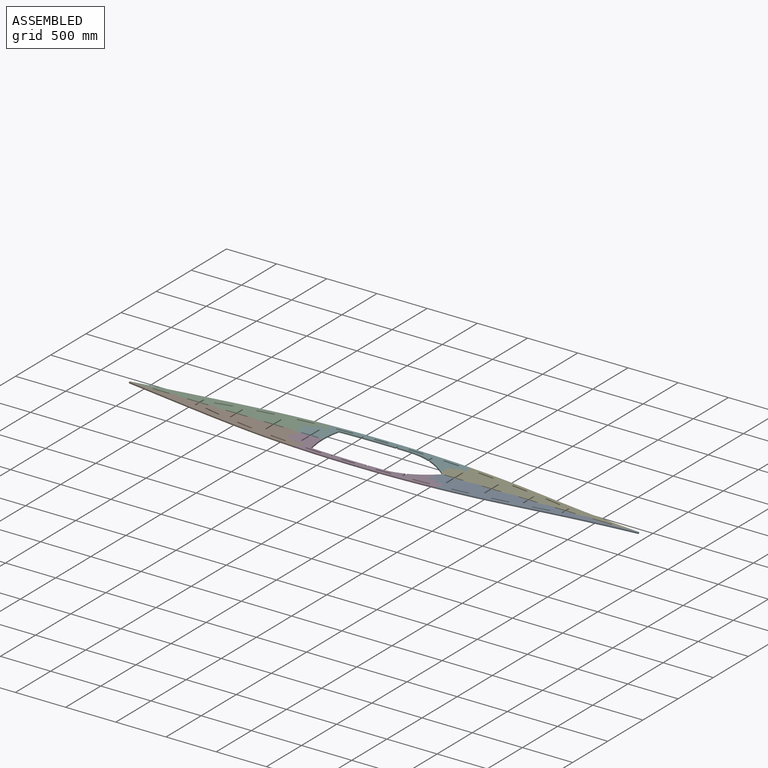
[diagram: assembled view]
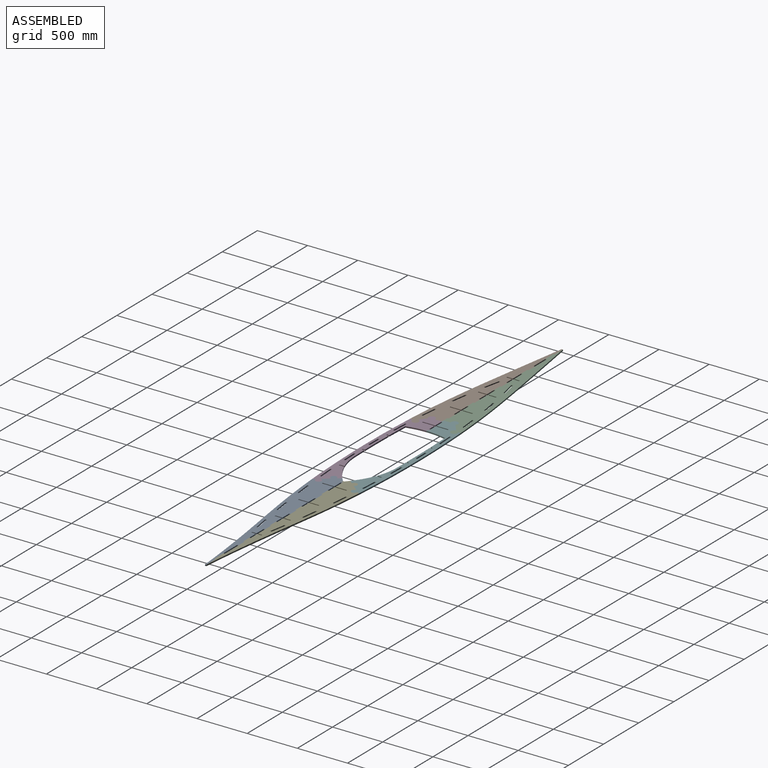
[diagram: assembled view, second angle]
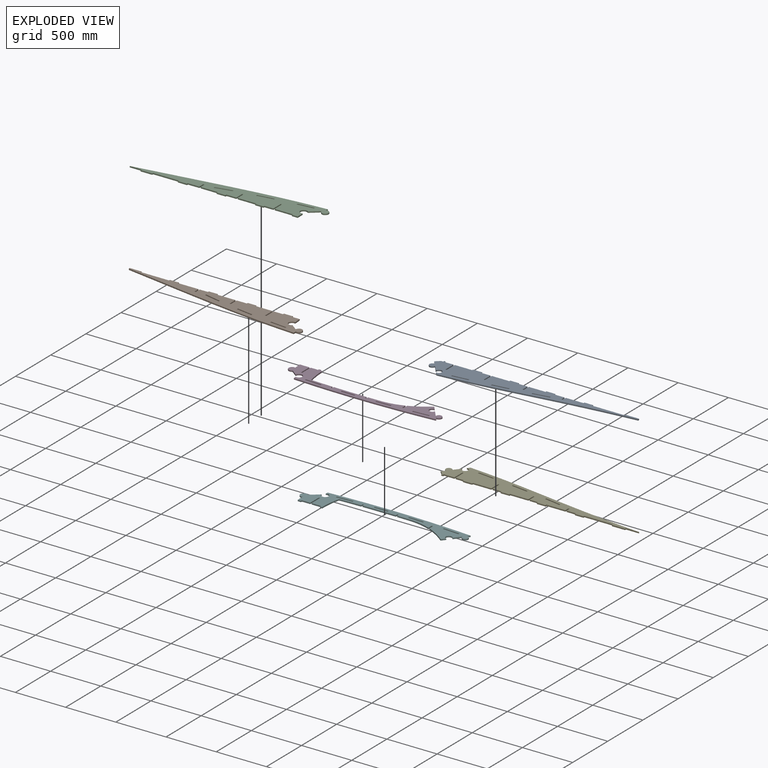
[diagram: exploded view]
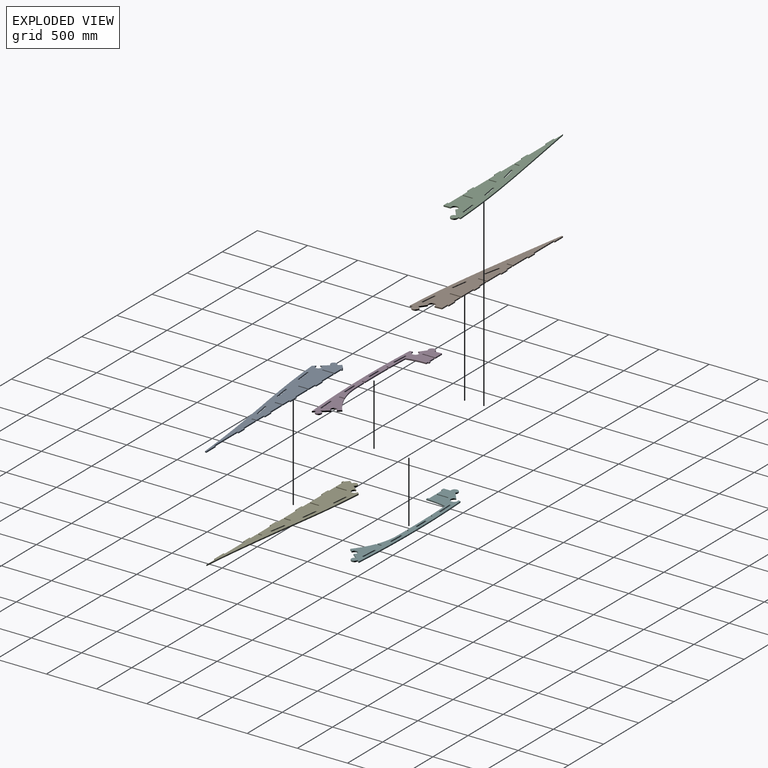
[diagram: exploded view, second angle]
ASSEMBLY  parts=6 mates=5
PART A: 67 faces, bbox 2007.6x243.5x12.7 mm
  f0: plane 27.32x21.97mm, normal (0.78,0.63,0), area 445.2mm2, adj f1,f64,f65,f66
  f1: extruded ~1849.71x230.82mm, area 23679.2mm2, adj f0,f2,f65,f66
  f2: plane 12.7x12.7mm, normal (-1,0,0), area 161.3mm2, adj f1,f3,f65,f66
  f3: plane 132.31x12.7mm, normal (0,-1,0), area 1680.4mm2, adj f2,f4,f65,f66
  f4: plane 12.7x12.7mm, normal (0.98,0.17,0), area 163.8mm2, adj f3,f5,f65,f66
  f5: extruded ~132.31x12.7mm, area 1680.4mm2, adj f4,f6,f65,f66
  f6: plane 195.46x12.7mm, normal (0,-1,0), area 2482.4mm2, adj f5,f7,f65,f66
  f7: plane 12.7x12.7mm, normal (-1,0,0), area 161.3mm2, adj f6,f8,f65,f66
  f8: plane 87.66x12.7mm, normal (0,-1,0), area 1113.3mm2, adj f7,f9,f65,f66
  f9: plane 12.7x12.7mm, normal (0.98,0.17,0), area 163.8mm2, adj f8,f10,f65,f66
  f10: plane 87.66x12.7mm, normal (0,-1,0), area 1113.3mm2, adj f9,f11,f65,f66
  f11: extruded ~90.73x12.7mm, area 1152.2mm2, adj f10,f12,f65,f66
  f12: plane 42.27x12.7mm, normal (1,0,0), area 536.8mm2, adj f11,f13,f65,f66
  f13: plane 12.71x12.7mm, normal (0,-1,0), area 161.4mm2, adj f12,f14,f65,f66
  f14: plane 42.27x12.7mm, normal (-1,0,0), area 536.8mm2, adj f13,f15,f65,f66
  f15: extruded ~100.24x12.7mm, area 1273.1mm2, adj f14,f16,f65,f66
  f16: plane 12.7x12.7mm, normal (-1,0,0), area 161.3mm2, adj f15,f17,f65,f66
  f17: plane 88.39x12.7mm, normal (0,-1,0), area 1122.5mm2, adj f16,f18,f65,f66
  f18: plane 12.7x12.7mm, normal (0.98,0.17,0), area 163.8mm2, adj f17,f19,f65,f66
  f19: plane 88.39x12.7mm, normal (0,-1,0), area 1122.5mm2, adj f18,f20,f65,f66
  f20: plane 81.07x12.7mm, normal (0,-1,0), area 1029.6mm2, adj f19,f21,f65,f66
  f21: plane 70.14x12.7mm, normal (1,0,0), area 890.8mm2, adj f20,f22,f65,f66
  f22: plane 12.71x12.7mm, normal (0,-1,0), area 161.4mm2, adj f21,f23,f65,f66
  f23: plane 70.14x12.7mm, normal (-1,0,0), area 890.8mm2, adj f22,f24,f65,f66
  f24: extruded ~93.08x12.7mm, area 1182.1mm2, adj f23,f25,f65,f66
  f25: plane 12.7x12.7mm, normal (-1,0,0), area 161.3mm2, adj f24,f26,f65,f66
  f26: plane 88.51x12.7mm, normal (0,-1,0), area 1124mm2, adj f25,f27,f65,f66
  f27: plane 12.7x12.7mm, normal (0.98,0.17,0), area 163.8mm2, adj f26,f28,f65,f66
  f28: plane 88.51x12.7mm, normal (0,-1,0), area 1124mm2, adj f27,f29,f65,f66
  f29: extruded ~87.9x12.7mm, area 1116.3mm2, adj f28,f30,f65,f66
  f30: plane 96.01x12.7mm, normal (1,0,0), area 1219.3mm2, adj f29,f31,f65,f66
  f31: plane 12.7x12.7mm, normal (0,-1,0), area 161.3mm2, adj f30,f32,f65,f66
  f32: plane 96.01x12.7mm, normal (-1,0,0), area 1219.3mm2, adj f31,f33,f65,f66
  f33: plane 90.33x12.7mm, normal (0,-1,0), area 1147.1mm2, adj f32,f34,f65,f66
  f34: plane 12.7x12.7mm, normal (-1,0,0), area 161.3mm2, adj f33,f35,f65,f66
  f35: plane 93.2x12.7mm, normal (0,-1,0), area 1183.6mm2, adj f34,f36,f65,f66
  f36: plane 12.7x12.7mm, normal (0.98,0.17,0), area 163.8mm2, adj f35,f37,f65,f66
  f37: plane 93.2x12.7mm, normal (0,-1,0), area 1183.6mm2, adj f36,f38,f65,f66
  f38: extruded ~81.21x12.7mm, area 1031.4mm2, adj f37,f39,f65,f66
  f39: plane 114.51x12.7mm, normal (1,0,0), area 1454.3mm2, adj f38,f40,f65,f66
  f40: plane 12.7x12.7mm, normal (0,-1,0), area 161.3mm2, adj f39,f41,f65,f66
  f41: plane 114.51x12.7mm, normal (-1,0,0), area 1454.3mm2, adj f40,f42,f65,f66
  f42: plane 90.23x12.7mm, normal (0,-1,0), area 1145.9mm2, adj f41,f43,f65,f66
  f43: plane 12.7x12.7mm, normal (-1,0,0), area 161.3mm2, adj f42,f44,f65,f66
  f44: plane 13.83x12.7mm, normal (0,-1,0), area 175.7mm2, adj f43,f45,f65,f66
  f45: plane 12.7x12.7mm, normal (0.98,0.17,0), area 163.8mm2, adj f44,f46,f65,f66
  f46: plane 20.79x12.7mm, normal (0,-1,0), area 264mm2, adj f45,f47,f65,f66
  f47: extruded ~43.25x36.96mm, area 722.7mm2, adj f46,f48,f65,f66
  f48: plane 35.93x28.9mm, normal (0.78,0.63,0), area 585.6mm2, adj f47,f49,f65,f66
  f49: cylinder r=29.82mm len=59.64mm, axis (0,0,-1), area 1730.3mm2, adj f48,f50,f65,f66
  f50: plane 69.27x55.72mm, normal (0.78,0.63,0), area 1129mm2, adj f49,f64,f65,f66
  f51: plane 14.67x12.7mm, normal (-1,0,0), area 186.3mm2, adj f52,f61,f65,f66
  f52: extruded ~80.56x12.7mm, area 1032mm2, adj f51,f53,f65,f66
  f53: extruded ~80.5x12.7mm, area 1032mm2, adj f52,f54,f65,f66
  f54: plane 14.62x12.7mm, normal (1,0,0), area 185.7mm2, adj f53,f61,f65,f66
  f55: extruded ~161.03x16.97mm, area 2056.4mm2, adj f56,f62,f65,f66
  f56: plane 14.72x12.7mm, normal (1,0,0), area 187mm2, adj f55,f57,f65,f66
  f57: extruded ~161.03x17mm, area 2056.5mm2, adj f56,f62,f65,f66
  f58: plane 14.67x12.7mm, normal (-1,0,0), area 186.3mm2, adj f59,f63,f65,f66
  f59: extruded ~161.1x27.82mm, area 2076.3mm2, adj f58,f60,f65,f66
  f60: plane 14.73x12.7mm, normal (1,0,0), area 187mm2, adj f59,f63,f65,f66
  f61: extruded ~161.06x21.77mm, area 2064.1mm2, adj f51,f54,f65,f66
  f62: plane 14.75x12.7mm, normal (-1,0,0), area 187.3mm2, adj f55,f57,f65,f66
  f63: extruded ~161.1x27.77mm, area 2076.2mm2, adj f58,f60,f65,f66
  f64: cylinder r=29.82mm len=59.64mm, axis (0,0,-1), area 1925.7mm2, adj f0,f50,f65,f66
  f65: plane 2007.64x243.52mm, normal (0,0,1), area 229362.9mm2, adj f0,f1,f2,f3,f4,f5,f6,f7
  f66: plane 2007.64x243.52mm, normal (0,0,-1), area 229362.9mm2, adj f0,f1,f2,f3,f4,f5,f6,f7
PART B: 56 faces, bbox 1854.6x255.7x12.7 mm
  f0: plane 70.97x12.7mm, normal (1,0.08,0), area 903.9mm2, adj f1,f53,f54,f55
  f1: plane 78.66x12.7mm, normal (0,1,0), area 999mm2, adj f0,f2,f54,f55
  f2: plane 12.7x12.7mm, normal (0.98,-0.17,0), area 163.8mm2, adj f1,f3,f54,f55
  f3: plane 90.76x12.7mm, normal (0,1,0), area 1152.6mm2, adj f2,f4,f54,f55
  f4: plane 12.7x12.7mm, normal (-1,0,0), area 161.3mm2, adj f3,f5,f54,f55
  f5: plane 91.99x12.7mm, normal (0,1,0), area 1168.3mm2, adj f4,f6,f54,f55
  f6: plane 105.84x12.7mm, normal (-1,0,0), area 1344.1mm2, adj f5,f7,f54,f55
  f7: extruded ~12.7x12.7mm, area 161.3mm2, adj f6,f8,f54,f55
  f8: plane 105.84x12.7mm, normal (1,0,0), area 1344.1mm2, adj f7,f9,f54,f55
  f9: extruded ~89.13x12.7mm, area 1131.9mm2, adj f8,f10,f54,f55
  f10: plane 83.5x12.7mm, normal (0,1,0), area 1060.4mm2, adj f9,f11,f54,f55
  f11: plane 12.7x12.7mm, normal (0.98,-0.17,0), area 163.8mm2, adj f10,f12,f54,f55
  f12: plane 83.5x12.7mm, normal (0,1,0), area 1060.4mm2, adj f11,f13,f54,f55
  f13: plane 12.7x12.7mm, normal (-1,0,0), area 161.3mm2, adj f12,f14,f54,f55
  f14: plane 101.78x12.7mm, normal (0,1,0), area 1292.7mm2, adj f13,f15,f54,f55
  f15: plane 83.13x12.7mm, normal (-1,0,0), area 1055.7mm2, adj f14,f16,f54,f55
  f16: plane 12.7x12.7mm, normal (0,1,0), area 161.3mm2, adj f15,f17,f54,f55
  f17: plane 83.13x12.7mm, normal (1,0,0), area 1055.7mm2, adj f16,f18,f54,f55
  f18: extruded ~98.75x12.7mm, area 1254.1mm2, adj f17,f19,f54,f55
  f19: plane 88.37x12.7mm, normal (0,1,0), area 1122.3mm2, adj f18,f20,f54,f55
  f20: plane 12.7x12.7mm, normal (0.98,-0.17,0), area 163.8mm2, adj f19,f21,f54,f55
  f21: plane 88.37x12.7mm, normal (0,1,0), area 1122.3mm2, adj f20,f22,f54,f55
  f22: plane 12.7x12.7mm, normal (-1,0,0), area 161.3mm2, adj f21,f23,f54,f55
  f23: plane 82.54x12.7mm, normal (0,1,0), area 1048.3mm2, adj f22,f24,f54,f55
  f24: plane 55.46x12.7mm, normal (-1,0,0), area 704.3mm2, adj f23,f25,f54,f55
  f25: plane 12.71x12.7mm, normal (0,1,0), area 161.4mm2, adj f24,f26,f54,f55
  f26: plane 55.46x12.7mm, normal (1,0,0), area 704.3mm2, adj f25,f27,f54,f55
  f27: extruded ~114.85x12.7mm, area 1458.6mm2, adj f26,f28,f54,f55
  f28: plane 90.33x12.7mm, normal (0,1,0), area 1147.1mm2, adj f27,f29,f54,f55
  f29: plane 12.7x12.7mm, normal (0.98,-0.17,0), area 163.8mm2, adj f28,f30,f54,f55
  f30: plane 90.33x12.7mm, normal (0,1,0), area 1147.1mm2, adj f29,f31,f54,f55
  f31: plane 12.7x12.7mm, normal (-1,0,0), area 161.3mm2, adj f30,f32,f54,f55
  f32: extruded ~167.52x12.7mm, area 2127.6mm2, adj f31,f33,f54,f55
  f33: plane 117.19x12.7mm, normal (0,1,0), area 1488.3mm2, adj f32,f34,f54,f55
  f34: plane 12.7x12.7mm, normal (0.98,-0.17,0), area 163.8mm2, adj f33,f35,f54,f55
  f35: plane 117.19x12.7mm, normal (0,1,0), area 1488.3mm2, adj f34,f36,f54,f55
  f36: plane 12.7x12.7mm, normal (-1,0,0), area 161.3mm2, adj f35,f37,f54,f55
  f37: extruded ~1813.71x243.04mm, area 23251mm2, adj f36,f38,f54,f55
  f38: plane 28.57x12.7mm, normal (0.99,0.13,0), area 365.9mm2, adj f37,f39,f54,f55
  f39: cylinder r=34.05mm len=68.1mm, axis (0,0,-1), area 2139.2mm2, adj f38,f40,f54,f55
  f40: plane 66.22x50.11mm, normal (0.6,0.8,0), area 1054.6mm2, adj f39,f53,f54,f55
  f41: extruded ~161.09x35.29mm, area 2094.4mm2, adj f42,f50,f54,f55
  f42: plane 15.13x12.7mm, normal (-1,0,0), area 192.2mm2, adj f41,f43,f54,f55
  f43: extruded ~161.09x35.19mm, area 2094.1mm2, adj f42,f50,f54,f55
  f44: plane 15.03x12.7mm, normal (1,0,0), area 190.9mm2, adj f45,f51,f54,f55
  f45: extruded ~161.02x25.16mm, area 2069.8mm2, adj f44,f46,f54,f55
  f46: plane 14.97x12.7mm, normal (-1,0,0), area 190.1mm2, adj f45,f51,f54,f55
  f47: extruded ~160.98x16.37mm, area 2055mm2, adj f48,f52,f54,f55
  f48: plane 14.87x12.7mm, normal (-1,0,0), area 188.9mm2, adj f47,f49,f54,f55
  f49: extruded ~160.98x16.34mm, area 2055mm2, adj f48,f52,f54,f55
  f50: plane 15.23x12.7mm, normal (1,0,0), area 193.4mm2, adj f41,f43,f54,f55
  f51: extruded ~161.02x25.1mm, area 2069.7mm2, adj f44,f46,f54,f55
  f52: plane 14.91x12.7mm, normal (1,0,0), area 189.3mm2, adj f47,f49,f54,f55
  f53: cylinder r=34.05mm len=68.1mm, axis (0,0,-1), area 1790.1mm2, adj f0,f40,f54,f55
  f54: plane 1854.63x255.74mm, normal (0,0,1), area 226402.7mm2, adj f0,f1,f2,f3,f4,f5,f6,f7
  f55: plane 1854.63x255.74mm, normal (0,0,-1), area 226402.7mm2, adj f0,f1,f2,f3,f4,f5,f6,f7
PART C: 55 faces, bbox 1849.4x255.1x12.7 mm
  f0: extruded ~161.09x35.19mm, area 2094.1mm2, adj f1,f52,f53,f54
  f1: extruded ~15.13x12.7mm, area 192.2mm2, adj f0,f2,f53,f54
  f2: extruded ~161.09x35.29mm, area 2094.4mm2, adj f1,f52,f53,f54
  f3: plane 14.97x12.7mm, normal (1,0,0), area 190.1mm2, adj f4,f49,f53,f54
  f4: extruded ~161.02x25.16mm, area 2069.8mm2, adj f3,f5,f53,f54
  f5: plane 15.03x12.7mm, normal (-1,0,0), area 190.9mm2, adj f4,f49,f53,f54
  f6: extruded ~160.98x16.34mm, area 2055mm2, adj f7,f50,f53,f54
  f7: plane 14.87x12.7mm, normal (1,0,0), area 188.9mm2, adj f6,f8,f53,f54
  f8: extruded ~160.98x16.37mm, area 2055mm2, adj f7,f50,f53,f54
  f9: plane 58.57x12.7mm, normal (0,1,0), area 743.8mm2, adj f10,f51,f53,f54
  f10: plane 70.92x12.7mm, normal (-1,-0.02,0), area 900.9mm2, adj f9,f11,f53,f54
  f11: cylinder r=34.05mm len=68.1mm, axis (0,0,-1), area 1844.5mm2, adj f10,f12,f53,f54
  f12: plane 88.12x70.49mm, normal (-0.62,0.78,0), area 1433.1mm2, adj f11,f13,f53,f54
  f13: cylinder r=34.05mm len=68.1mm, axis (0,0,-1), area 2218.7mm2, adj f12,f14,f53,f54
  f14: plane 25.2x12.7mm, normal (-0.99,0.13,0), area 322.7mm2, adj f13,f15,f53,f54
  f15: extruded ~1802.85x242.38mm, area 23112.8mm2, adj f14,f16,f53,f54
  f16: plane 117.19x12.7mm, normal (0,1,0), area 1488.3mm2, adj f15,f17,f53,f54
  f17: plane 12.7x12.7mm, normal (0.98,-0.17,0), area 163.8mm2, adj f16,f18,f53,f54
  f18: plane 117.19x12.7mm, normal (0,1,0), area 1488.3mm2, adj f17,f19,f53,f54
  f19: plane 12.7x12.7mm, normal (-1,0,0), area 161.3mm2, adj f18,f20,f53,f54
  f20: extruded ~167.52x12.7mm, area 2127.6mm2, adj f19,f21,f53,f54
  f21: plane 90.33x12.7mm, normal (0,1,0), area 1147.1mm2, adj f20,f22,f53,f54
  f22: plane 12.7x12.7mm, normal (0.98,-0.17,0), area 163.8mm2, adj f21,f23,f53,f54
  f23: plane 90.33x12.7mm, normal (0,1,0), area 1147.1mm2, adj f22,f24,f53,f54
  f24: plane 12.7x12.7mm, normal (-1,0,0), area 161.3mm2, adj f23,f25,f53,f54
  f25: extruded ~114.85x12.7mm, area 1458.6mm2, adj f24,f26,f53,f54
  f26: extruded ~55.46x12.7mm, area 704.3mm2, adj f25,f27,f53,f54
  f27: plane 12.71x12.7mm, normal (0,1,0), area 161.4mm2, adj f26,f28,f53,f54
  f28: extruded ~55.46x12.7mm, area 704.3mm2, adj f27,f29,f53,f54
  f29: extruded ~82.54x12.7mm, area 1048.3mm2, adj f28,f30,f53,f54
  f30: plane 88.37x12.7mm, normal (0,1,0), area 1122.3mm2, adj f29,f31,f53,f54
  f31: plane 12.7x12.7mm, normal (0.98,-0.17,0), area 163.8mm2, adj f30,f32,f53,f54
  f32: plane 88.37x12.7mm, normal (0,1,0), area 1122.3mm2, adj f31,f33,f53,f54
  f33: plane 12.7x12.7mm, normal (-1,0,0), area 161.3mm2, adj f32,f34,f53,f54
  f34: plane 98.75x12.7mm, normal (0,1,0), area 1254.1mm2, adj f33,f35,f53,f54
  f35: plane 83.13x12.7mm, normal (-1,0,0), area 1055.7mm2, adj f34,f36,f53,f54
  f36: plane 12.7x12.7mm, normal (0,1,0), area 161.3mm2, adj f35,f37,f53,f54
  f37: extruded ~83.13x12.7mm, area 1055.7mm2, adj f36,f38,f53,f54
  f38: extruded ~101.78x12.7mm, area 1292.7mm2, adj f37,f39,f53,f54
  f39: plane 83.5x12.7mm, normal (0,1,0), area 1060.4mm2, adj f38,f40,f53,f54
  f40: plane 12.7x12.7mm, normal (0.98,-0.17,0), area 163.8mm2, adj f39,f41,f53,f54
  f41: plane 83.5x12.7mm, normal (0,1,0), area 1060.4mm2, adj f40,f42,f53,f54
  f42: plane 12.7x12.7mm, normal (-1,0,0), area 161.3mm2, adj f41,f43,f53,f54
  f43: plane 89.13x12.7mm, normal (0,1,0), area 1131.9mm2, adj f42,f44,f53,f54
  f44: plane 105.84x12.7mm, normal (-1,0,0), area 1344.1mm2, adj f43,f45,f53,f54
  f45: plane 12.7x12.7mm, normal (0,1,0), area 161.3mm2, adj f44,f46,f53,f54
  f46: plane 105.84x12.7mm, normal (1,0,0), area 1344.1mm2, adj f45,f47,f53,f54
  f47: extruded ~91.99x12.7mm, area 1168.3mm2, adj f46,f48,f53,f54
  f48: plane 90.76x12.7mm, normal (0,1,0), area 1152.6mm2, adj f47,f51,f53,f54
  f49: extruded ~161.02x25.1mm, area 2069.7mm2, adj f3,f5,f53,f54
  f50: plane 14.91x12.7mm, normal (-1,0,0), area 189.3mm2, adj f6,f8,f53,f54
  f51: plane 12.7x12.7mm, normal (0.98,-0.17,0), area 163.8mm2, adj f9,f48,f53,f54
  f52: plane 15.23x12.7mm, normal (-1,0,0), area 193.4mm2, adj f0,f2,f53,f54
  f53: plane 1849.41x255.08mm, normal (0,0,1), area 221836.7mm2, adj f0,f1,f2,f3,f4,f5,f6,f7
  f54: plane 1849.41x255.08mm, normal (0,0,-1), area 221836.7mm2, adj f0,f1,f2,f3,f4,f5,f6,f7
PART D: 53 faces, bbox 1576.1x273.9x12.7 mm
  f0: extruded ~160.99x12.7mm, area 2049.3mm2, adj f1,f50,f51,f52
  f1: plane 14.74x12.7mm, normal (-1,0,0), area 187.2mm2, adj f0,f2,f51,f52
  f2: extruded ~160.99x12.7mm, area 2049.2mm2, adj f1,f50,f51,f52
  f3: plane 14.84x12.7mm, normal (1,0,0), area 188.5mm2, adj f4,f46,f51,f52
  f4: extruded ~161.01x12.7mm, area 2047.8mm2, adj f3,f5,f51,f52
  f5: plane 14.83x12.7mm, normal (-1,0,0), area 188.3mm2, adj f4,f46,f51,f52
  f6: extruded ~148.3x12.7mm, area 1884.2mm2, adj f7,f47,f51,f52
  f7: plane 14.82x12.7mm, normal (1,0,0), area 188.1mm2, adj f6,f8,f51,f52
  f8: extruded ~148.3x12.7mm, area 1884.2mm2, adj f7,f47,f51,f52
  f9: extruded ~135.59x12.7mm, area 1722.1mm2, adj f10,f48,f51,f52
  f10: plane 14.81x12.7mm, normal (1,0,0), area 188.1mm2, adj f9,f11,f51,f52
  f11: extruded ~135.59x12.7mm, area 1722.1mm2, adj f10,f48,f51,f52
  f12: cylinder r=29.82mm len=59.64mm, axis (0,0,-1), area 1730.3mm2, adj f13,f49,f51,f52
  f13: plane 35.93x28.9mm, normal (0.78,0.63,0), area 585.6mm2, adj f12,f14,f51,f52
  f14: extruded ~189.79x114.19mm, area 2822.6mm2, adj f13,f15,f51,f52
  f15: plane 52.6x12.7mm, normal (-1,0,0), area 668.1mm2, adj f14,f16,f51,f52
  f16: extruded ~12.7x12.7mm, area 161.3mm2, adj f15,f17,f51,f52
  f17: plane 47.53x12.7mm, normal (1,0,0), area 603.6mm2, adj f16,f18,f51,f52
  f18: extruded ~342.92x45.02mm, area 4423.6mm2, adj f17,f19,f51,f52
  f19: plane 22.51x12.7mm, normal (-1,0,0), area 285.9mm2, adj f18,f20,f51,f52
  f20: extruded ~12.7x12.7mm, area 161.3mm2, adj f19,f21,f51,f52
  f21: plane 22.41x12.7mm, normal (1,0,0), area 284.6mm2, adj f20,f22,f51,f52
  f22: extruded ~330.2x12.7mm, area 4193.9mm2, adj f21,f23,f51,f52
  f23: plane 21.13x12.7mm, normal (-1,0,0), area 268.4mm2, adj f22,f24,f51,f52
  f24: extruded ~12.7x12.7mm, area 161.3mm2, adj f23,f25,f51,f52
  f25: plane 21.44x12.7mm, normal (1,0,0), area 272.2mm2, adj f24,f26,f51,f52
  f26: extruded ~216.28x12.7mm, area 2748.5mm2, adj f25,f27,f51,f52
  f27: extruded ~190.94x24.47mm, area 2450.6mm2, adj f26,f28,f51,f52
  f28: plane 22.3x12.7mm, normal (0,1,0), area 283.2mm2, adj f27,f29,f51,f52
  f29: plane 12.7x12.7mm, normal (0.98,-0.17,0), area 163.8mm2, adj f28,f30,f51,f52
  f30: plane 22.28x12.7mm, normal (0,1,0), area 282.9mm2, adj f29,f31,f51,f52
  f31: plane 12.7x12.7mm, normal (-1,0,0), area 161.3mm2, adj f30,f32,f51,f52
  f32: extruded ~72.54x12.7mm, area 921.2mm2, adj f31,f33,f51,f52
  f33: plane 121.04x12.7mm, normal (-1,0,0), area 1537.2mm2, adj f32,f34,f51,f52
  f34: extruded ~12.7x12.7mm, area 161.3mm2, adj f33,f35,f51,f52
  f35: plane 121.04x12.7mm, normal (1,0,0), area 1537.2mm2, adj f34,f36,f51,f52
  f36: extruded ~84.34x12.7mm, area 1071.1mm2, adj f35,f37,f51,f52
  f37: plane 12.7x12.1mm, normal (0,1,0), area 153.6mm2, adj f36,f38,f51,f52
  f38: plane 70.97x12.7mm, normal (-1,-0.08,0), area 903.9mm2, adj f37,f39,f51,f52
  f39: cylinder r=34.05mm len=68.1mm, axis (0,0,-1), area 1790.1mm2, adj f38,f40,f51,f52
  f40: plane 66.22x50.11mm, normal (-0.6,-0.8,0), area 1054.6mm2, adj f39,f41,f51,f52
  f41: cylinder r=34.05mm len=68.1mm, axis (0,0,-1), area 2139.2mm2, adj f40,f42,f51,f52
  f42: plane 28.57x12.7mm, normal (-0.99,-0.13,0), area 365.9mm2, adj f41,f43,f51,f52
  f43: extruded ~1409.66x30.18mm, area 17916.9mm2, adj f42,f44,f51,f52
  f44: plane 27.32x21.97mm, normal (0.78,0.63,0), area 445.2mm2, adj f43,f45,f51,f52
  f45: cylinder r=29.82mm len=59.64mm, axis (0,0,-1), area 1925.7mm2, adj f44,f49,f51,f52
  f46: extruded ~161.01x12.7mm, area 2047.8mm2, adj f3,f5,f51,f52
  f47: plane 14.79x12.7mm, normal (-1,0,0), area 187.8mm2, adj f6,f8,f51,f52
  f48: plane 14.81x12.7mm, normal (-1,0,0), area 188.1mm2, adj f9,f11,f51,f52
  f49: plane 69.27x55.72mm, normal (0.78,0.63,0), area 1129mm2, adj f12,f45,f51,f52
  f50: plane 14.73x12.7mm, normal (1,0,0), area 187.1mm2, adj f0,f2,f51,f52
  f51: plane 1576.06x273.9mm, normal (0,0,1), area 137871.3mm2, adj f0,f1,f2,f3,f4,f5,f6,f7
  f52: plane 1576.06x273.9mm, normal (0,0,-1), area 137871.3mm2, adj f0,f1,f2,f3,f4,f5,f6,f7
PART E: 67 faces, bbox 2000.1x242.7x12.7 mm
  f0: plane 14.62x12.7mm, normal (-1,0,0), area 185.7mm2, adj f1,f64,f65,f66
  f1: extruded ~80.5x12.7mm, area 1032mm2, adj f0,f2,f65,f66
  f2: extruded ~80.56x12.7mm, area 1032mm2, adj f1,f3,f65,f66
  f3: plane 14.67x12.7mm, normal (1,0,0), area 186.3mm2, adj f2,f64,f65,f66
  f4: plane 14.73x12.7mm, normal (-1,0,0), area 187mm2, adj f5,f61,f65,f66
  f5: extruded ~161.1x27.82mm, area 2076.3mm2, adj f4,f6,f65,f66
  f6: plane 14.67x12.7mm, normal (1,0,0), area 186.3mm2, adj f5,f61,f65,f66
  f7: extruded ~161.03x17mm, area 2056.5mm2, adj f8,f62,f65,f66
  f8: plane 14.72x12.7mm, normal (-1,0,0), area 187mm2, adj f7,f9,f65,f66
  f9: extruded ~161.03x16.97mm, area 2056.4mm2, adj f8,f62,f65,f66
  f10: plane 132.31x12.7mm, normal (0,-1,0), area 1680.4mm2, adj f11,f63,f65,f66
  f11: extruded ~1838.76x229.97mm, area 23539.7mm2, adj f10,f12,f65,f66
  f12: plane 24.78x20.25mm, normal (-0.77,0.63,0), area 406.4mm2, adj f11,f13,f65,f66
  f13: cylinder r=29.82mm len=59.64mm, axis (0,0,-1), area 1822.8mm2, adj f12,f14,f65,f66
  f14: plane 64.63x52.81mm, normal (-0.77,0.63,0), area 1059.9mm2, adj f13,f15,f65,f66
  f15: cylinder r=29.82mm len=59.28mm, axis (0,0,-1), area 1590.6mm2, adj f14,f16,f65,f66
  f16: plane 37.24x30.43mm, normal (-0.77,0.63,0), area 610.7mm2, adj f15,f17,f65,f66
  f17: extruded ~37.73x32.49mm, area 632.4mm2, adj f16,f18,f65,f66
  f18: plane 12.7x12.7mm, normal (-1,0,0), area 161.3mm2, adj f17,f19,f65,f66
  f19: plane 20.79x12.7mm, normal (0,-1,0), area 264mm2, adj f18,f20,f65,f66
  f20: plane 12.7x12.7mm, normal (0.98,0.17,0), area 163.8mm2, adj f19,f21,f65,f66
  f21: plane 13.83x12.7mm, normal (0,-1,0), area 175.7mm2, adj f20,f22,f65,f66
  f22: extruded ~90.23x12.7mm, area 1145.9mm2, adj f21,f23,f65,f66
  f23: plane 114.51x12.7mm, normal (1,0,0), area 1454.3mm2, adj f22,f24,f65,f66
  f24: extruded ~12.7x12.7mm, area 161.3mm2, adj f23,f25,f65,f66
  f25: plane 114.51x12.7mm, normal (-1,0,0), area 1454.3mm2, adj f24,f26,f65,f66
  f26: plane 81.21x12.7mm, normal (0,-1,0), area 1031.4mm2, adj f25,f27,f65,f66
  f27: plane 12.7x12.7mm, normal (-1,0,0), area 161.3mm2, adj f26,f28,f65,f66
  f28: plane 93.2x12.7mm, normal (0,-1,0), area 1183.6mm2, adj f27,f29,f65,f66
  f29: plane 12.7x12.7mm, normal (0.98,0.17,0), area 163.8mm2, adj f28,f30,f65,f66
  f30: plane 93.2x12.7mm, normal (0,-1,0), area 1183.6mm2, adj f29,f31,f65,f66
  f31: extruded ~90.33x12.7mm, area 1147.1mm2, adj f30,f32,f65,f66
  f32: plane 96.01x12.7mm, normal (1,0,0), area 1219.3mm2, adj f31,f33,f65,f66
  f33: plane 12.7x12.7mm, normal (0,-1,0), area 161.3mm2, adj f32,f34,f65,f66
  f34: plane 96.01x12.7mm, normal (-1,0,0), area 1219.3mm2, adj f33,f35,f65,f66
  f35: extruded ~87.9x12.7mm, area 1116.3mm2, adj f34,f36,f65,f66
  f36: plane 12.7x12.7mm, normal (-1,0,0), area 161.3mm2, adj f35,f37,f65,f66
  f37: plane 88.51x12.7mm, normal (0,-1,0), area 1124mm2, adj f36,f38,f65,f66
  f38: plane 12.7x12.7mm, normal (0.98,0.17,0), area 163.8mm2, adj f37,f39,f65,f66
  f39: plane 88.51x12.7mm, normal (0,-1,0), area 1124mm2, adj f38,f40,f65,f66
  f40: extruded ~93.08x12.7mm, area 1182.1mm2, adj f39,f41,f65,f66
  f41: plane 70.14x12.7mm, normal (1,0,0), area 890.8mm2, adj f40,f42,f65,f66
  f42: plane 12.71x12.7mm, normal (0,-1,0), area 161.4mm2, adj f41,f43,f65,f66
  f43: plane 70.14x12.7mm, normal (-1,0,0), area 890.8mm2, adj f42,f44,f65,f66
  f44: plane 81.07x12.7mm, normal (0,-1,0), area 1029.6mm2, adj f43,f45,f65,f66
  f45: plane 12.7x12.7mm, normal (-1,0,0), area 161.3mm2, adj f44,f46,f65,f66
  f46: plane 88.39x12.7mm, normal (0,-1,0), area 1122.5mm2, adj f45,f47,f65,f66
  f47: plane 12.7x12.7mm, normal (0.98,0.17,0), area 163.8mm2, adj f46,f48,f65,f66
  f48: plane 88.39x12.7mm, normal (0,-1,0), area 1122.5mm2, adj f47,f49,f65,f66
  f49: extruded ~100.24x12.7mm, area 1273.1mm2, adj f48,f50,f65,f66
  f50: plane 42.27x12.7mm, normal (1,0,0), area 536.8mm2, adj f49,f51,f65,f66
  f51: plane 12.71x12.7mm, normal (0,-1,0), area 161.4mm2, adj f50,f52,f65,f66
  f52: plane 42.27x12.7mm, normal (-1,0,0), area 536.8mm2, adj f51,f53,f65,f66
  f53: extruded ~90.73x12.7mm, area 1152.2mm2, adj f52,f54,f65,f66
  f54: plane 12.7x12.7mm, normal (-1,0,0), area 161.3mm2, adj f53,f55,f65,f66
  f55: plane 87.66x12.7mm, normal (0,-1,0), area 1113.3mm2, adj f54,f56,f65,f66
  f56: plane 12.7x12.7mm, normal (0.98,0.17,0), area 163.8mm2, adj f55,f57,f65,f66
  f57: plane 87.66x12.7mm, normal (0,-1,0), area 1113.3mm2, adj f56,f58,f65,f66
  f58: extruded ~195.46x12.7mm, area 2482.4mm2, adj f57,f59,f65,f66
  f59: plane 12.7x12.7mm, normal (-1,0,0), area 161.3mm2, adj f58,f60,f65,f66
  f60: plane 132.31x12.7mm, normal (0,-1,0), area 1680.4mm2, adj f59,f63,f65,f66
  f61: extruded ~161.1x27.77mm, area 2076.2mm2, adj f4,f6,f65,f66
  f62: plane 14.75x12.7mm, normal (1,0,0), area 187.3mm2, adj f7,f9,f65,f66
  f63: plane 12.7x12.7mm, normal (0.98,0.17,0), area 163.8mm2, adj f10,f60,f65,f66
  f64: extruded ~161.06x21.77mm, area 2064.1mm2, adj f0,f3,f65,f66
  f65: plane 2000.12x242.67mm, normal (0,0,1), area 227294.1mm2, adj f0,f1,f2,f3,f4,f5,f6,f7
  f66: plane 2000.12x242.67mm, normal (0,0,-1), area 227294.1mm2, adj f0,f1,f2,f3,f4,f5,f6,f7
PART F: 53 faces, bbox 1613.3x273.9x12.7 mm
  f0: extruded ~14.83x12.7mm, area 188.3mm2, adj f1,f50,f51,f52
  f1: extruded ~161.01x12.7mm, area 2047.8mm2, adj f0,f2,f51,f52
  f2: extruded ~14.84x12.7mm, area 188.5mm2, adj f1,f50,f51,f52
  f3: extruded ~160.99x12.7mm, area 2049.2mm2, adj f4,f46,f51,f52
  f4: plane 14.74x12.7mm, normal (-1,0,0), area 187.2mm2, adj f3,f5,f51,f52
  f5: extruded ~160.99x12.7mm, area 2049.3mm2, adj f4,f46,f51,f52
  f6: extruded ~148.3x12.7mm, area 1884.2mm2, adj f7,f47,f51,f52
  f7: plane 14.82x12.7mm, normal (1,0,0), area 188.1mm2, adj f6,f8,f51,f52
  f8: extruded ~148.3x12.7mm, area 1884.2mm2, adj f7,f47,f51,f52
  f9: extruded ~135.59x12.7mm, area 1722.1mm2, adj f10,f48,f51,f52
  f10: extruded ~14.81x12.7mm, area 188.1mm2, adj f9,f11,f51,f52
  f11: extruded ~135.59x12.7mm, area 1722.1mm2, adj f10,f48,f51,f52
  f12: plane 88.12x70.49mm, normal (-0.62,0.78,0), area 1433.1mm2, adj f13,f49,f51,f52
  f13: cylinder r=34.05mm len=68.1mm, axis (0,0,-1), area 1844.5mm2, adj f12,f14,f51,f52
  f14: plane 70.92x12.7mm, normal (-1,-0.02,0), area 900.9mm2, adj f13,f15,f51,f52
  f15: plane 32.19x12.7mm, normal (0,-1,0), area 408.7mm2, adj f14,f16,f51,f52
  f16: plane 12.7x12.7mm, normal (1,0,0), area 161.3mm2, adj f15,f17,f51,f52
  f17: plane 84.34x12.7mm, normal (0,-1,0), area 1071.1mm2, adj f16,f18,f51,f52
  f18: plane 121.04x12.7mm, normal (1,0,0), area 1537.2mm2, adj f17,f19,f51,f52
  f19: plane 12.7x12.7mm, normal (0,-1,0), area 161.3mm2, adj f18,f20,f51,f52
  f20: plane 121.04x12.7mm, normal (-1,0,0), area 1537.2mm2, adj f19,f21,f51,f52
  f21: plane 72.54x12.7mm, normal (0,-1,0), area 921.2mm2, adj f20,f22,f51,f52
  f22: plane 22.28x12.7mm, normal (0,-1,0), area 282.9mm2, adj f21,f23,f51,f52
  f23: plane 12.7x12.7mm, normal (-0.98,0.17,0), area 163.8mm2, adj f22,f24,f51,f52
  f24: plane 22.3x12.7mm, normal (0,-1,0), area 283.2mm2, adj f23,f25,f51,f52
  f25: extruded ~203.64x24.49mm, area 2612.3mm2, adj f24,f26,f51,f52
  f26: extruded ~216.28x12.7mm, area 2748.5mm2, adj f25,f27,f51,f52
  f27: extruded ~21.44x12.7mm, area 272.2mm2, adj f26,f28,f51,f52
  f28: extruded ~12.7x12.7mm, area 161.3mm2, adj f27,f29,f51,f52
  f29: extruded ~21.13x12.7mm, area 268.4mm2, adj f28,f30,f51,f52
  f30: extruded ~330.2x12.7mm, area 4193.9mm2, adj f29,f31,f51,f52
  f31: plane 22.41x12.7mm, normal (1,0,0), area 284.6mm2, adj f30,f32,f51,f52
  f32: extruded ~12.7x12.7mm, area 161.3mm2, adj f31,f33,f51,f52
  f33: plane 22.51x12.7mm, normal (-1,0,0), area 285.9mm2, adj f32,f34,f51,f52
  f34: extruded ~342.92x45.02mm, area 4423.6mm2, adj f33,f35,f51,f52
  f35: plane 47.53x12.7mm, normal (1,0,0), area 603.6mm2, adj f34,f36,f51,f52
  f36: plane 12.7x12.7mm, normal (0,-1,0), area 161.3mm2, adj f35,f37,f51,f52
  f37: extruded ~52.6x12.7mm, area 668.1mm2, adj f36,f38,f51,f52
  f38: extruded ~195.31x118.66mm, area 2913mm2, adj f37,f39,f51,f52
  f39: plane 37.24x30.43mm, normal (0.77,-0.63,0), area 610.7mm2, adj f38,f40,f51,f52
  f40: cylinder r=29.82mm len=59.28mm, axis (0,0,-1), area 1590.6mm2, adj f39,f41,f51,f52
  f41: plane 64.63x52.81mm, normal (0.77,-0.63,0), area 1059.9mm2, adj f40,f42,f51,f52
  f42: cylinder r=29.82mm len=59.64mm, axis (0,0,-1), area 1822.8mm2, adj f41,f43,f51,f52
  f43: plane 24.78x20.25mm, normal (0.77,-0.63,0), area 406.4mm2, adj f42,f44,f51,f52
  f44: extruded ~1431.47x31.03mm, area 18194.6mm2, adj f43,f45,f51,f52
  f45: plane 25.2x12.7mm, normal (-0.99,0.13,0), area 322.7mm2, adj f44,f49,f51,f52
  f46: plane 14.73x12.7mm, normal (1,0,0), area 187.1mm2, adj f3,f5,f51,f52
  f47: extruded ~14.79x12.7mm, area 187.8mm2, adj f6,f8,f51,f52
  f48: extruded ~14.81x12.7mm, area 188.1mm2, adj f9,f11,f51,f52
  f49: cylinder r=34.05mm len=68.1mm, axis (0,0,-1), area 2218.7mm2, adj f12,f45,f51,f52
  f50: extruded ~161.01x12.7mm, area 2047.8mm2, adj f0,f2,f51,f52
  f51: plane 1613.29x273.9mm, normal (0,0,1), area 144575.4mm2, adj f0,f1,f2,f3,f4,f5,f6,f7
  f52: plane 1613.29x273.9mm, normal (0,0,-1), area 144575.4mm2, adj f0,f1,f2,f3,f4,f5,f6,f7
PLACE A rot(axis=(0,0,1),180deg) t=(3255.97,222.48,-26.76)mm
PLACE B t=(-1817.11,209.78,-26.76)mm
PLACE C rot(axis=(0,0,1),180deg) t=(-14.26,464.86,-26.76)mm
PLACE D t=(-3.4,-33.25,-26.76)mm
PLACE E t=(1293.58,209.78,-26.76)mm
PLACE F t=(-135.53,209.79,-26.76)mm
MATE fastened D.f51 <-> F.f51  axis (0,0,1) through (108.57,209.78,-14.06)mm
MATE fastened C.f13 <-> F.f49  axis (0,0,1) through (-1.74,409.47,-14.06)mm
MATE fastened B.f39 <-> D.f41  axis (0,0,1) through (3.48,27.69,-14.06)mm
MATE fastened A.f49 <-> D.f12  axis (0,0,1) through (1278.15,107.09,-14.06)mm
MATE fastened E.f15 <-> F.f40  axis (0,0,1) through (1290.91,321.67,-14.06)mm
